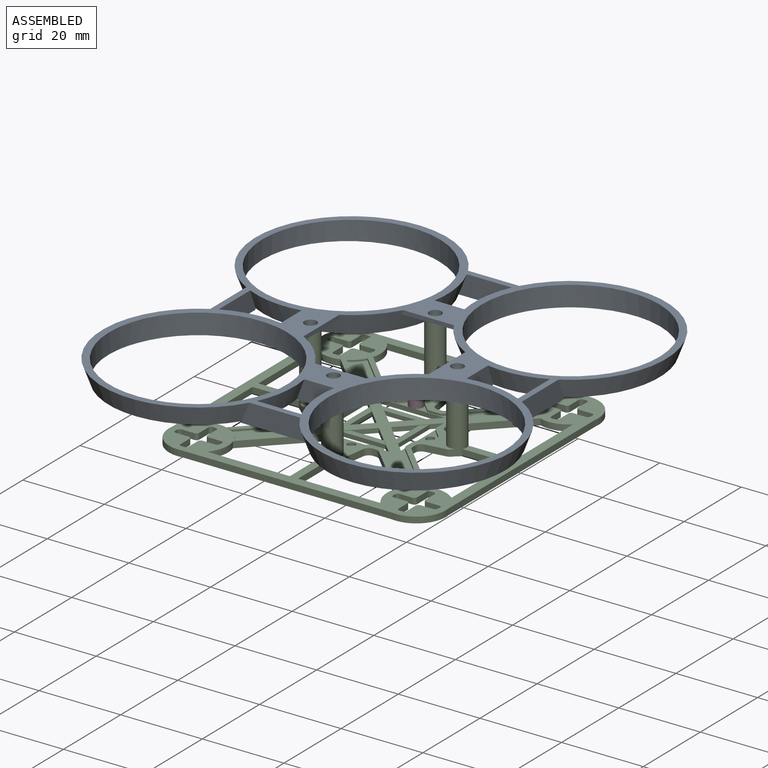
[diagram: assembled view]
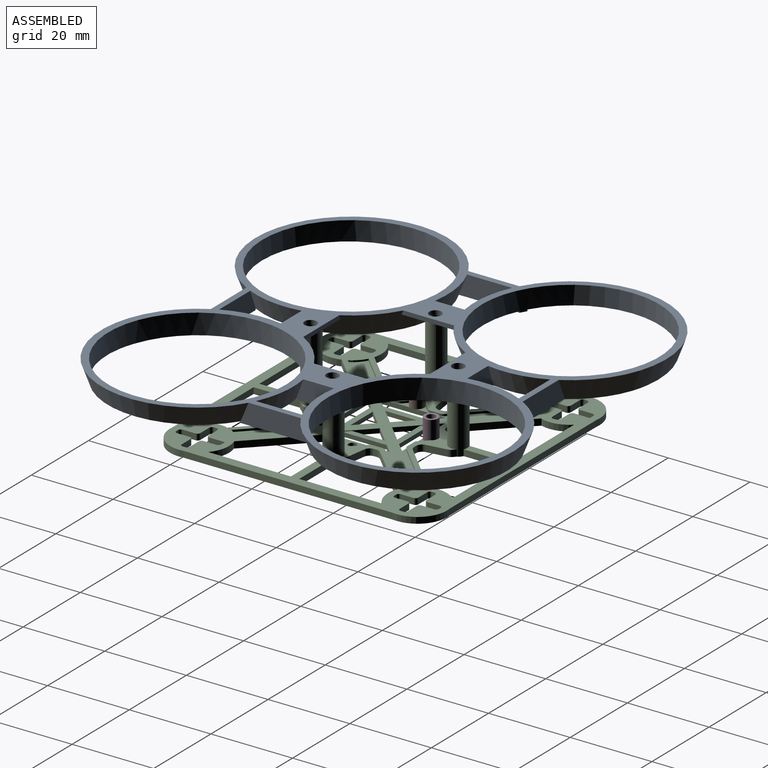
[diagram: assembled view, second angle]
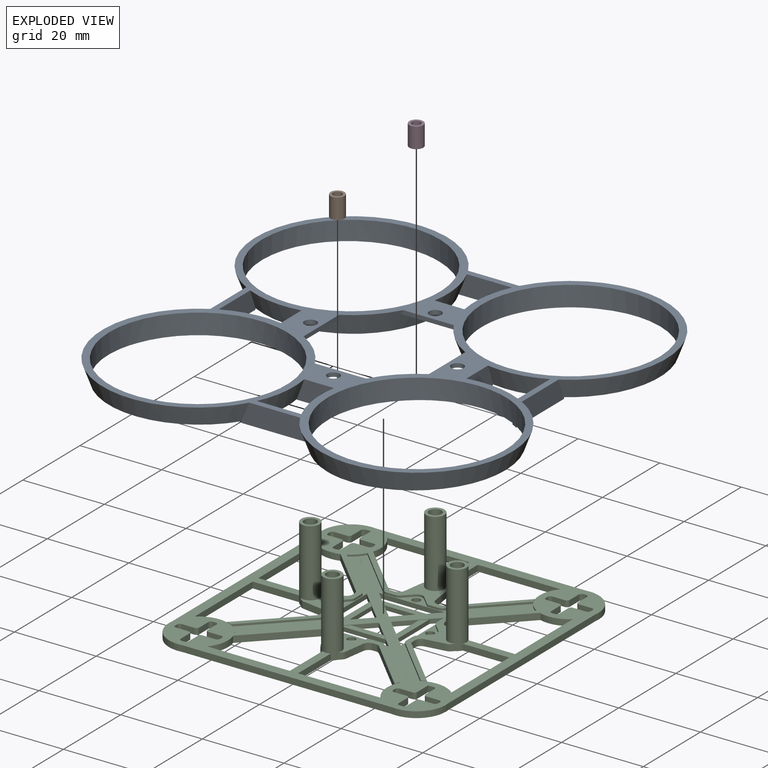
[diagram: exploded view]
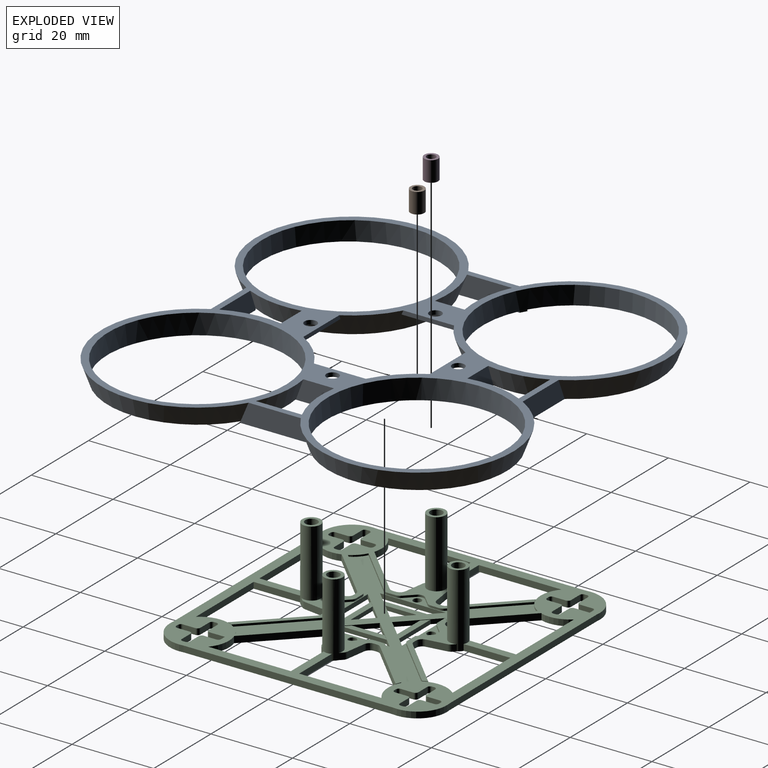
[diagram: exploded view, second angle]
ASSEMBLY  parts=4 mates=3
PART A: 54 faces, bbox 100.6x100.9x5.1 mm
  f0: cylinder r=21.74mm len=43.48mm, axis (0,0,-1), area 657.2mm2, adj f7,f11,f12,f13,f21,f22,f28,f36
  f1: cylinder r=21.74mm len=43.48mm, axis (0,0,-1), area 657.2mm2, adj f5,f6,f7,f8,f9,f17,f25,f26
  f2: cylinder r=21.74mm len=43.48mm, axis (0,0,-1), area 657.2mm2, adj f8,f9,f10,f17,f18,f24,f25,f27
  f3: cylinder r=21.74mm len=43.48mm, axis (0,0,-1), area 657.2mm2, adj f4,f10,f19,f20,f30,f31,f35,f36
  f4: cone r=23.5mm half-angle=20deg, axis (0,0,-1), area 121.3mm2, adj f3,f36,f37,f45,f46,f47,f49,f50
  f5: cone r=23.5mm half-angle=20deg, axis (0,0,-1), area 416mm2, adj f1,f7,f17,f23,f37
  f6: cone r=23.5mm half-angle=20deg, axis (0,0,-1), area 121.3mm2, adj f1,f7,f37,f38,f40,f41,f43,f51
  f7: plane 38.68x36.77mm, normal (0,0,1), area 28.4mm2, adj f0,f1,f5,f6,f14,f15,f16,f22
  f8: plane 16.71x1.51mm, normal (0,0,1), area 23.9mm2, adj f1,f2,f17,f25
  f9: plane 11.13x0.1mm, normal (0,0,1), area 1.1mm2, adj f1,f2,f34,f53
  f10: plane 36.77x27.56mm, normal (0,0,1), area 26.3mm2, adj f2,f3,f18,f19,f27,f29,f30,f35
  f11: plane 10.91x5.01mm, normal (1,0,0), area 45.5mm2, adj f0,f12,f32,f36,f37
  f12: cone r=23.5mm half-angle=20deg, axis (0,0,-1), area 72.2mm2, adj f0,f11,f13,f37
  f13: plane 14.95x5.04mm, normal (-1,0,0), area 65.1mm2, adj f0,f12,f32,f36,f37
  f14: plane 10.97x5.01mm, normal (0,1,0), area 45.5mm2, adj f7,f15,f33,f37
  f15: cone r=23.5mm half-angle=20deg, axis (0,0,-1), area 76.1mm2, adj f7,f14,f16,f37
  f16: plane 15.09x5.04mm, normal (0,-1,0), area 65.1mm2, adj f7,f15,f33,f37
  f17: plane 16.75x5.04mm, normal (-1,0,0), area 74.4mm2, adj f1,f2,f5,f8,f18,f37
  f18: cone r=23.5mm half-angle=20deg, axis (0,0,-1), area 417.6mm2, adj f2,f10,f17,f19,f37
  f19: plane 16.5x5.05mm, normal (0,-1,0), area 72.5mm2, adj f3,f10,f18,f20,f37
  f20: cone r=23.5mm half-angle=20deg, axis (0,0,-1), area 416mm2, adj f3,f19,f21,f36,f37
  f21: plane 16.66x5.05mm, normal (1,0,0), area 73.2mm2, adj f0,f20,f22,f36,f37
  f22: cone r=23.5mm half-angle=20deg, axis (0,0,-1), area 416mm2, adj f0,f7,f21,f23,f37
  f23: plane 16.82x5.05mm, normal (0,1,0), area 73.2mm2, adj f5,f7,f22,f37
  f24: cone r=23.5mm half-angle=20deg, axis (0,0,-1), area 72.2mm2, adj f2,f25,f34,f37
  f25: plane 15.06x5.03mm, normal (1,0,0), area 66.3mm2, adj f1,f2,f8,f24,f26,f37
  f26: cone r=23.5mm half-angle=20deg, axis (0,0,-1), area 72.2mm2, adj f1,f25,f34,f37
  f27: cone r=23.5mm half-angle=20deg, axis (0,0,-1), area 119.8mm2, adj f2,f10,f37,f38,f40,f45,f46,f52
  f28: cone r=23.5mm half-angle=20deg, axis (0,0,-1), area 121.3mm2, adj f0,f7,f37,f41,f43,f47,f49,f50
  f29: cone r=23.5mm half-angle=20deg, axis (0,0,-1), area 75.9mm2, adj f10,f30,f35,f37
  f30: plane 10.96x5.01mm, normal (0,-1,0), area 45.8mm2, adj f3,f10,f29,f31,f37
  f31: cone r=23.5mm half-angle=20deg, axis (0,0,-1), area 72.2mm2, adj f3,f30,f35,f37
  f32: cone r=23.5mm half-angle=20deg, axis (0,0,-1), area 76.1mm2, adj f11,f13,f36,f37
  f33: cone r=23.5mm half-angle=20deg, axis (0,0,-1), area 76.1mm2, adj f7,f14,f16,f37
  f34: plane 11.11x5.01mm, normal (-1,0,0), area 46.8mm2, adj f1,f2,f9,f24,f26,f37
  f35: plane 14.82x5.04mm, normal (0,1,0), area 64.5mm2, adj f3,f10,f29,f31,f37
  f36: plane 36.77x27.56mm, normal (0,0,1), area 26.5mm2, adj f0,f3,f4,f11,f13,f20,f21,f32
  f37: plane 100.84x100.59mm, normal (0,0,-1), area 1324.1mm2, adj f0,f1,f2,f3,f4,f5,f6,f11
  f38: plane 13.52x1mm, normal (1,0,0), area 13.1mm2, adj f6,f27,f37,f40
  f39: cylinder r=1.5mm len=3mm, axis (0,0,-1), area 9.4mm2, adj f37,f40
  f40: plane 13.52x5.75mm, normal (0,0,1), area 55.8mm2, adj f6,f27,f38,f39,f53
  f41: plane 13.26x1mm, normal (0,-1,0), area 12.8mm2, adj f6,f28,f37,f43
  f42: cylinder r=1.5mm len=3mm, axis (0,0,-1), area 9.4mm2, adj f37,f43
  f43: plane 13.26x5.75mm, normal (0,0,1), area 54.3mm2, adj f6,f28,f41,f42,f51
  f44: cylinder r=1.5mm len=3mm, axis (0,0,-1), area 9.4mm2, adj f37,f46
  f45: plane 13.41x1mm, normal (0,1,0), area 13mm2, adj f4,f27,f37,f46
  f46: plane 13.41x5.75mm, normal (0,0,1), area 54.9mm2, adj f4,f27,f44,f45,f52
  f47: plane 13.26x1mm, normal (-1,0,0), area 12.8mm2, adj f4,f28,f37,f49
  f48: cylinder r=1.5mm len=3mm, axis (0,0,-1), area 9.4mm2, adj f37,f49
  f49: plane 13.26x5.75mm, normal (0,0,1), area 54.3mm2, adj f4,f28,f47,f48,f50
  f50: plane 11.01x4.06mm, normal (-0.93,0,0.36), area 42.1mm2, adj f0,f4,f28,f36,f49
  f51: plane 11.05x4.06mm, normal (0,-0.93,0.36), area 42.1mm2, adj f6,f7,f28,f43
  f52: plane 11.06x4.06mm, normal (0,0.93,0.36), area 42.4mm2, adj f3,f4,f10,f27,f46
  f53: plane 11.21x4.05mm, normal (0.93,0,0.36), area 43.2mm2, adj f1,f2,f6,f9,f27,f40
PART B: 4 faces, bbox 3.4x3.4x5 mm
  f0: cylinder r=1.1mm len=5mm, axis (0,0,-1), area 34.6mm2, adj f2,f3
  f1: cylinder r=1.7mm len=5mm, axis (0,0,-1), area 53.4mm2, adj f2,f3
  f2: plane 3.4x3.4mm, normal (0,0,1), area 5.3mm2, adj f0,f1
  f3: plane 3.4x3.4mm, normal (0,0,-1), area 5.3mm2, adj f0,f1
PART C: 284 faces, bbox 67.8x67.8x18 mm
  f0: cylinder r=7.23mm len=6.95mm, axis (0,0,-1), area 11.1mm2, adj f41,f76,f94,f280
  f1: cylinder r=7.23mm len=8.27mm, axis (0,0,-1), area 20.2mm2, adj f76,f94,f276,f281
  f2: cylinder r=7.23mm len=8.27mm, axis (0,0,-1), area 20.2mm2, adj f76,f94,f264,f276
  f3: cylinder r=7.23mm len=6.95mm, axis (0,0,-1), area 11.1mm2, adj f51,f76,f94,f275
  f4: cylinder r=2.25mm len=18mm, axis (0,0,-1), area 236.6mm2, adj f31,f35,f36,f76,f77,f94,f269,f273
  f5: cylinder r=7.23mm len=8.27mm, axis (0,0,-1), area 20.2mm2, adj f76,f94,f264,f271
  f6: cylinder r=7.23mm len=8.27mm, axis (0,0,-1), area 20.2mm2, adj f76,f94,f271,f281
  f7: cylinder r=7.23mm len=6.95mm, axis (0,0,-1), area 11.1mm2, adj f69,f76,f94,f265
  f8: cylinder r=7.23mm len=6.95mm, axis (0,0,-1), area 11.1mm2, adj f61,f76,f94,f268
  f9: plane 8.05x8.05mm, normal (-0.71,0.71,0), area 10.4mm2, adj f10,f26,f76,f162,f252,f253,f254
  f10: plane 8.05x8.05mm, normal (0.71,0.71,0), area 10.4mm2, adj f9,f26,f76,f162,f252,f253,f254
  f11: plane 8.05x8.05mm, normal (0.71,0.71,0), area 10.4mm2, adj f12,f21,f76,f162,f261,f262,f263
  f12: plane 8.05x8.05mm, normal (0.71,-0.71,0), area 10.4mm2, adj f11,f21,f76,f162,f261,f262,f263
  f13: plane 8.05x8.05mm, normal (-0.71,-0.71,0), area 10.4mm2, adj f14,f25,f76,f162,f258,f259,f260
  f14: plane 16.1x1.1mm, normal (0,1,0), area 17.7mm2, adj f13,f25,f76,f162
  f15: plane 8.05x8.05mm, normal (-0.71,0.71,0), area 10.4mm2, adj f16,f27,f76,f162,f255,f256,f257
  f16: plane 16.1x1.1mm, normal (1,0,0), area 17.7mm2, adj f15,f27,f76,f162
  f17: cylinder r=7.23mm len=1.16mm, axis (0,0,-1), area 0.1mm2, adj f41,f75,f94,f155
  f18: cylinder r=7.23mm len=1.19mm, axis (0,0,-1), area 0.1mm2, adj f29,f51,f94,f134
  f19: cylinder r=7.23mm len=1.16mm, axis (0,0,-1), area 0.1mm2, adj f30,f61,f94,f141
  f20: cylinder r=1mm len=2mm, axis (0,0,-1), area 6.9mm2, adj f76,f162
  f21: plane 16.1x1.1mm, normal (-1,0,0), area 17.7mm2, adj f11,f12,f76,f162
  f22: cylinder r=1mm len=2mm, axis (0,0,-1), area 6.9mm2, adj f76,f162
  f23: cylinder r=1mm len=2mm, axis (0,0,-1), area 6.9mm2, adj f76,f162
  f24: cylinder r=1mm len=2mm, axis (0,0,-1), area 6.9mm2, adj f76,f162
  f25: plane 8.05x8.05mm, normal (0.71,-0.71,0), area 10.4mm2, adj f13,f14,f76,f162,f258,f259,f260
  f26: plane 16.1x1.1mm, normal (0,-1,0), area 17.7mm2, adj f9,f10,f76,f162
  f27: plane 8.05x8.05mm, normal (-0.71,-0.71,0), area 10.4mm2, adj f15,f16,f76,f162,f255,f256,f257
  f28: cylinder r=7.23mm len=1.19mm, axis (0,0,-1), area 0.1mm2, adj f30,f69,f94,f146
  f29: plane 40.62x14.52mm, normal (0,0,1), area 90.9mm2, adj f18,f51,f52,f53,f54,f55,f56,f57
  f30: plane 40.61x14.49mm, normal (0,0,1), area 89.8mm2, adj f19,f28,f61,f62,f63,f64,f65,f66
  f31: plane 40.61x14.52mm, normal (0,0,1), area 91mm2, adj f4,f32,f33,f34,f35,f36,f37,f38
  f32: plane 12.73x12.73mm, normal (-0.71,-0.71,0), area 28.8mm2, adj f31,f73,f76,f93,f183
  f33: plane 1.6x0.71mm, normal (-1,0,0), area 1.1mm2, adj f31,f76,f183,f184
  f34: plane 4.91x1.6mm, normal (-0.15,0.99,0), area 7.9mm2, adj f31,f76,f184,f188
  f35: plane 1.6x0.64mm, normal (-0.71,0.7,0), area 1.4mm2, adj f4,f31,f76,f188
  f36: plane 1.6x0.64mm, normal (-0.71,-0.7,0), area 1.4mm2, adj f4,f31,f76,f189
  f37: plane 4.91x1.6mm, normal (-0.15,-0.99,0), area 7.9mm2, adj f31,f76,f189,f190
  f38: plane 1.6x0.71mm, normal (-1,0,0), area 1.1mm2, adj f31,f76,f190,f191
  f39: plane 12.73x12.73mm, normal (-0.71,0.71,0), area 28.8mm2, adj f31,f40,f76,f108,f191
  f40: cylinder r=7.23mm len=1.23mm, axis (0,0,-1), area 0.1mm2, adj f31,f39,f94,f153
  f41: plane 12.7x12.7mm, normal (0.71,-0.71,0), area 28.7mm2, adj f0,f17,f75,f76,f192
  f42: plane 1.6x0.76mm, normal (0,-1,0), area 1.2mm2, adj f75,f76,f192,f193
  f43: plane 4.91x1.6mm, normal (-0.99,-0.15,0), area 7.9mm2, adj f75,f76,f193,f194
  f44: plane 1.6x0.64mm, normal (-0.7,-0.71,0), area 1.4mm2, adj f45,f75,f76,f194
  f45: cylinder r=2.25mm len=18mm, axis (0,0,-1), area 236.6mm2, adj f44,f46,f75,f76,f80,f94,f279,f283
  f46: plane 1.6x0.64mm, normal (0.7,-0.71,0), area 1.4mm2, adj f45,f75,f76,f195
  f47: plane 4.91x1.6mm, normal (0.99,-0.15,0), area 7.9mm2, adj f75,f76,f195,f196
  f48: plane 1.6x0.71mm, normal (0,-1,0), area 1.1mm2, adj f75,f76,f196,f197
  f49: plane 12.73x12.73mm, normal (-0.71,-0.71,0), area 28.8mm2, adj f50,f75,f76,f121,f197
  f50: cylinder r=7.23mm len=1.2mm, axis (0,0,-1), area 0.1mm2, adj f49,f75,f94,f160
  f51: plane 12.7x12.7mm, normal (0.71,0.71,0), area 28.7mm2, adj f3,f18,f29,f76,f198
  f52: plane 1.6x0.76mm, normal (1,0,0), area 1.2mm2, adj f29,f76,f198,f204
  f53: plane 4.91x1.6mm, normal (0.15,-0.99,0), area 7.9mm2, adj f29,f76,f204,f205
  f54: plane 1.6x0.64mm, normal (0.71,-0.7,0), area 1.4mm2, adj f29,f55,f76,f205
  f55: cylinder r=2.25mm len=18mm, axis (0,0,-1), area 236.6mm2, adj f29,f54,f56,f76,f79,f94,f274,f278
  f56: plane 1.6x0.64mm, normal (0.71,0.7,0), area 1.4mm2, adj f29,f55,f76,f203
  f57: plane 4.91x1.6mm, normal (0.15,0.99,0), area 7.9mm2, adj f29,f76,f202,f203
  f58: plane 1.6x0.71mm, normal (1,0,0), area 1.1mm2, adj f29,f76,f187,f202
  f59: plane 12.73x12.73mm, normal (0.71,-0.71,0), area 28.8mm2, adj f29,f60,f76,f95,f187
  f60: cylinder r=7.23mm len=1.23mm, axis (0,0,-1), area 0.1mm2, adj f29,f59,f94,f139
  f61: plane 12.7x12.7mm, normal (-0.71,0.71,0), area 28.7mm2, adj f8,f19,f30,f76,f186
  f62: plane 1.6x0.76mm, normal (0,1,0), area 1.2mm2, adj f30,f76,f186,f200
  f63: plane 4.91x1.6mm, normal (0.99,0.15,0), area 7.9mm2, adj f30,f76,f200,f201
  f64: plane 1.6x0.64mm, normal (0.7,0.71,0), area 1.4mm2, adj f30,f65,f76,f201
  f65: cylinder r=2.25mm len=18mm, axis (0,0,-1), area 236.6mm2, adj f30,f64,f66,f76,f78,f94,f266,f267
  f66: plane 1.6x0.64mm, normal (-0.7,0.71,0), area 1.4mm2, adj f30,f65,f76,f199
  f67: plane 4.91x1.6mm, normal (-0.99,0.15,0), area 7.9mm2, adj f30,f76,f185,f199
  f68: plane 1.6x0.76mm, normal (0,1,0), area 1.2mm2, adj f30,f76,f182,f185
  f69: plane 12.7x12.7mm, normal (0.71,0.71,0), area 28.7mm2, adj f7,f28,f30,f76,f182
  f70: cylinder r=1.5mm len=18mm, axis (0,0,-1), area 169.6mm2, adj f76,f78
  f71: cylinder r=1.5mm len=18mm, axis (0,0,-1), area 169.6mm2, adj f76,f80
  f72: cylinder r=1.5mm len=18mm, axis (0,0,-1), area 169.6mm2, adj f76,f79
  f73: cylinder r=7.23mm len=1.2mm, axis (0,0,-1), area 0.1mm2, adj f31,f32,f94,f148
  f74: cylinder r=1.5mm len=18mm, axis (0,0,-1), area 169.6mm2, adj f76,f77
  f75: plane 40.59x14.52mm, normal (0,0,1), area 89.6mm2, adj f17,f41,f42,f43,f44,f45,f46,f47
  f76: plane 67.84x67.84mm, normal (0,0,-1), area 1962.7mm2, adj f0,f1,f2,f3,f4,f5,f6,f7
  f77: plane 4.5x4.5mm, normal (0,0,1), area 8.8mm2, adj f4,f74
  f78: plane 4.5x4.5mm, normal (0,0,1), area 8.8mm2, adj f65,f70
  f79: plane 4.5x4.5mm, normal (0,0,1), area 8.8mm2, adj f55,f72
  f80: plane 4.5x4.5mm, normal (0,0,1), area 8.8mm2, adj f45,f71
  f81: plane 3.1x1.5mm, normal (0,1,0), area 4.6mm2, adj f76,f94,f206,f216
  f82: plane 3.1x1.5mm, normal (-1,0,0), area 4.6mm2, adj f76,f94,f215,f216
  f83: plane 1.5x0.6mm, normal (0,1,0), area 0.9mm2, adj f76,f94,f214,f215
  f84: plane 3.1x1.5mm, normal (1,0,0), area 4.6mm2, adj f76,f94,f213,f214
  f85: plane 3.1x1.5mm, normal (0,1,0), area 4.7mm2, adj f76,f94,f212,f213
  f86: plane 1.5x0.6mm, normal (1,0,0), area 0.9mm2, adj f76,f94,f211,f212
  f87: plane 3.1x1.5mm, normal (0,-1,0), area 4.7mm2, adj f76,f94,f210,f211
  f88: plane 3.1x1.5mm, normal (1,0,0), area 4.7mm2, adj f76,f94,f209,f210
  f89: plane 1.5x1.3mm, normal (0,-1,0), area 2mm2, adj f76,f90,f94,f209
  f90: plane 3.8x1.5mm, normal (-1,0,0), area 5.7mm2, adj f76,f89,f94,f208
  f91: plane 3.1x1.5mm, normal (0,-1,0), area 4.6mm2, adj f76,f94,f207,f208
  f92: plane 1.5x0.6mm, normal (-1,0,0), area 0.9mm2, adj f76,f94,f206,f207
  f93: cylinder r=7.23mm len=6.92mm, axis (0,0,-1), area 11.1mm2, adj f32,f76,f94,f270
  f94: plane 67.84x67.84mm, normal (0,0,1), area 1028.8mm2, adj f0,f1,f2,f3,f4,f5,f6,f7
  f95: cylinder r=7.23mm len=6.92mm, axis (0,0,-1), area 11.1mm2, adj f59,f76,f94,f277
  f96: plane 3.1x1.5mm, normal (1,0,0), area 4.6mm2, adj f76,f94,f217,f228
  f97: plane 3.1x1.5mm, normal (0,1,0), area 4.6mm2, adj f76,f94,f227,f228
  f98: plane 1.5x0.6mm, normal (1,0,0), area 0.9mm2, adj f76,f94,f226,f227
  f99: plane 3.1x1.5mm, normal (0,-1,0), area 4.6mm2, adj f76,f94,f225,f226
  f100: plane 3.1x1.5mm, normal (1,0,0), area 4.7mm2, adj f76,f94,f224,f225
  f101: plane 1.5x0.6mm, normal (0,-1,0), area 0.9mm2, adj f76,f94,f223,f224
  f102: plane 3.1x1.5mm, normal (-1,0,0), area 4.7mm2, adj f76,f94,f222,f223
  f103: plane 3.1x1.5mm, normal (0,-1,0), area 4.7mm2, adj f76,f94,f221,f222
  f104: plane 1.5x0.6mm, normal (-1,0,0), area 0.9mm2, adj f76,f94,f220,f221
  f105: plane 3.1x1.5mm, normal (0,1,0), area 4.7mm2, adj f76,f94,f219,f220
  f106: plane 3.1x1.5mm, normal (-1,0,0), area 4.6mm2, adj f76,f94,f218,f219
  f107: plane 1.5x0.6mm, normal (0,1,0), area 0.9mm2, adj f76,f94,f217,f218
  f108: cylinder r=7.23mm len=6.92mm, axis (0,0,-1), area 11.1mm2, adj f39,f76,f94,f272
  f109: plane 3.1x1.5mm, normal (0,1,0), area 4.7mm2, adj f76,f94,f229,f240
  f110: plane 1.5x0.6mm, normal (1,0,0), area 0.9mm2, adj f76,f94,f229,f230
  f111: plane 3.1x1.5mm, normal (0,-1,0), area 4.7mm2, adj f76,f94,f230,f231
  f112: plane 3.1x1.5mm, normal (1,0,0), area 4.6mm2, adj f76,f94,f231,f232
  f113: plane 1.5x0.6mm, normal (0,-1,0), area 0.9mm2, adj f76,f94,f232,f233
  f114: plane 3.1x1.5mm, normal (-1,0,0), area 4.6mm2, adj f76,f94,f233,f234
  f115: plane 3.1x1.5mm, normal (0,-1,0), area 4.6mm2, adj f76,f94,f234,f235
  f116: plane 1.5x0.6mm, normal (-1,0,0), area 0.9mm2, adj f76,f94,f235,f236
  f117: plane 3.1x1.5mm, normal (0,1,0), area 4.6mm2, adj f76,f94,f236,f237
  f118: plane 3.1x1.5mm, normal (-1,0,0), area 4.7mm2, adj f76,f94,f237,f238
  f119: plane 1.5x0.6mm, normal (0,1,0), area 0.9mm2, adj f76,f94,f238,f239
  f120: plane 3.1x1.5mm, normal (1,0,0), area 4.7mm2, adj f76,f94,f239,f240
  f121: cylinder r=7.23mm len=6.92mm, axis (0,0,-1), area 11.1mm2, adj f49,f76,f94,f282
  f122: plane 3.1x1.5mm, normal (-1,0,0), area 4.7mm2, adj f76,f94,f241,f251
  f123: plane 1.5x0.6mm, normal (0,1,0), area 0.9mm2, adj f76,f94,f250,f251
  f124: plane 3.1x1.5mm, normal (1,0,0), area 4.7mm2, adj f76,f94,f249,f250
  f125: plane 3.1x1.5mm, normal (0,1,0), area 4.6mm2, adj f76,f94,f248,f249
  f126: plane 1.5x0.6mm, normal (1,0,0), area 0.9mm2, adj f76,f94,f247,f248
  f127: plane 3.1x1.5mm, normal (0,-1,0), area 4.6mm2, adj f76,f94,f246,f247
  f128: plane 3.8x1.5mm, normal (1,0,0), area 5.7mm2, adj f76,f94,f129,f246
  f129: plane 1.5x1.3mm, normal (0,-1,0), area 2mm2, adj f76,f94,f128,f245
  f130: plane 3.1x1.5mm, normal (-1,0,0), area 4.6mm2, adj f76,f94,f244,f245
  f131: plane 3.1x1.5mm, normal (0,-1,0), area 4.7mm2, adj f76,f94,f243,f244
  f132: plane 1.5x0.6mm, normal (-1,0,0), area 0.9mm2, adj f76,f94,f242,f243
  f133: plane 3.1x1.5mm, normal (0,1,0), area 4.7mm2, adj f76,f94,f241,f242
  f134: plane 12.86x12.86mm, normal (-0.71,-0.71,0), area 9.1mm2, adj f18,f29,f161,f162,f164
  f135: plane 2.11x0.5mm, normal (-1,0,0), area 1.1mm2, adj f29,f162,f164,f177
  f136: plane 2.16x2.16mm, normal (-0.71,0.71,0), area 1.5mm2, adj f29,f162,f177,f180
  f137: plane 2.16x2.16mm, normal (-0.71,-0.71,0), area 1.5mm2, adj f29,f162,f166,f180
  f138: plane 2.13x0.5mm, normal (-1,0,0), area 1.1mm2, adj f29,f162,f166,f167
  f139: plane 12.86x12.86mm, normal (-0.71,0.71,0), area 9.1mm2, adj f29,f60,f140,f162,f167
  f140: cylinder r=7.23mm len=3.01mm, axis (0,0,1), area 1.7mm2, adj f94,f139,f141,f162
  f141: plane 12.89x12.89mm, normal (0.71,-0.71,0), area 9.1mm2, adj f19,f30,f140,f162,f165
  f142: plane 2.7x0.5mm, normal (0,-1,0), area 1.4mm2, adj f30,f143,f162,f165
  f143: plane 2.58x2.58mm, normal (-0.71,-0.71,0), area 1.8mm2, adj f30,f142,f162,f179
  f144: plane 2.14x2.14mm, normal (0.71,-0.71,0), area 1.5mm2, adj f30,f162,f178,f179
  f145: plane 2.14x0.5mm, normal (0,-1,0), area 1.1mm2, adj f30,f162,f171,f178
  f146: plane 12.86x12.86mm, normal (-0.71,-0.71,0), area 9.1mm2, adj f28,f30,f147,f162,f171
  f147: cylinder r=7.23mm len=3.01mm, axis (0,0,1), area 1.7mm2, adj f94,f146,f148,f162
  f148: plane 12.89x12.89mm, normal (0.71,0.71,0), area 9.1mm2, adj f31,f73,f147,f162,f170
  f149: plane 2.09x0.5mm, normal (1,0,0), area 1mm2, adj f31,f162,f170,f173
  f150: plane 2.15x2.15mm, normal (0.71,-0.71,0), area 1.5mm2, adj f31,f162,f173,f174
  f151: plane 2.15x2.15mm, normal (0.71,0.71,0), area 1.5mm2, adj f31,f162,f172,f174
  f152: plane 2.12x0.5mm, normal (1,0,0), area 1.1mm2, adj f31,f162,f169,f172
  f153: plane 12.86x12.86mm, normal (0.71,-0.71,0), area 9.1mm2, adj f31,f40,f154,f162,f169
  f154: cylinder r=7.23mm len=3.01mm, axis (0,0,1), area 1.7mm2, adj f94,f153,f155,f162
  f155: plane 12.89x12.89mm, normal (-0.71,0.71,0), area 9.1mm2, adj f17,f75,f154,f162,f168
  f156: plane 2.07x0.5mm, normal (0,1,0), area 1mm2, adj f75,f162,f168,f175
  f157: plane 2.16x2.16mm, normal (0.71,0.71,0), area 1.5mm2, adj f75,f162,f175,f181
  f158: plane 2.16x2.16mm, normal (-0.71,0.71,0), area 1.5mm2, adj f75,f162,f176,f181
  f159: plane 2.06x0.5mm, normal (0,1,0), area 1mm2, adj f75,f162,f163,f176
  f160: plane 12.89x12.89mm, normal (0.71,0.71,0), area 9.1mm2, adj f50,f75,f161,f162,f163
  f161: cylinder r=7.23mm len=3.01mm, axis (0,0,1), area 1.7mm2, adj f94,f134,f160,f162
  f162: plane 46.65x46.62mm, normal (0,0,1), area 478.8mm2, adj f9,f10,f11,f12,f13,f14,f15,f16
  f163: cylinder r=1.5mm len=1.06mm, axis (0,0,1), area 0.6mm2, adj f75,f159,f160,f162
  f164: cylinder r=1.5mm len=1.06mm, axis (0,0,-1), area 0.6mm2, adj f29,f134,f135,f162
  f165: cylinder r=1.5mm len=1.06mm, axis (0,0,1), area 0.6mm2, adj f30,f141,f142,f162
  f166: cylinder r=1.5mm len=1.06mm, axis (0,0,-1), area 0.6mm2, adj f29,f137,f138,f162
  f167: cylinder r=1.5mm len=1.06mm, axis (0,0,1), area 0.6mm2, adj f29,f138,f139,f162
  f168: cylinder r=1.5mm len=1.06mm, axis (0,0,-1), area 0.6mm2, adj f75,f155,f156,f162
  f169: cylinder r=1.5mm len=1.06mm, axis (0,0,-1), area 0.6mm2, adj f31,f152,f153,f162
  f170: cylinder r=1.5mm len=1.06mm, axis (0,0,-1), area 0.6mm2, adj f31,f148,f149,f162
  f171: cylinder r=1.5mm len=1.06mm, axis (0,0,1), area 0.6mm2, adj f30,f145,f146,f162
  f172: cylinder r=1.5mm len=1.06mm, axis (0,0,1), area 0.6mm2, adj f31,f151,f152,f162
  f173: cylinder r=1.5mm len=1.06mm, axis (0,0,1), area 0.6mm2, adj f31,f149,f150,f162
  f174: cylinder r=1.5mm len=2.12mm, axis (0,0,-1), area 1.2mm2, adj f31,f150,f151,f162
  f175: cylinder r=1.5mm len=1.06mm, axis (0,0,1), area 0.6mm2, adj f75,f156,f157,f162
  f176: cylinder r=1.5mm len=1.06mm, axis (0,0,1), area 0.6mm2, adj f75,f158,f159,f162
  f177: cylinder r=1.5mm len=1.06mm, axis (0,0,-1), area 0.6mm2, adj f29,f135,f136,f162
  f178: cylinder r=1.5mm len=1.06mm, axis (0,0,-1), area 0.6mm2, adj f30,f144,f145,f162
  f179: cylinder r=1.5mm len=2.12mm, axis (0,0,-1), area 1.2mm2, adj f30,f143,f144,f162
  f180: cylinder r=1.5mm len=2.12mm, axis (0,0,-1), area 1.2mm2, adj f29,f136,f137,f162
  f181: cylinder r=1.5mm len=2.12mm, axis (0,0,-1), area 1.2mm2, adj f75,f157,f158,f162
  f182: cylinder r=1.5mm len=1.6mm, axis (0,0,1), area 1.9mm2, adj f30,f68,f69,f76
  f183: cylinder r=1.5mm len=1.6mm, axis (0,0,-1), area 1.9mm2, adj f31,f32,f33,f76
  f184: cylinder r=1.5mm len=1.6mm, axis (0,0,1), area 3.4mm2, adj f31,f33,f34,f76
  f185: cylinder r=1.5mm len=1.6mm, axis (0,0,1), area 3.4mm2, adj f30,f67,f68,f76
  f186: cylinder r=1.5mm len=1.6mm, axis (0,0,-1), area 1.9mm2, adj f30,f61,f62,f76
  f187: cylinder r=1.5mm len=1.6mm, axis (0,0,-1), area 1.9mm2, adj f29,f58,f59,f76
  f188: cylinder r=1.5mm len=1.6mm, axis (0,0,-1), area 1.6mm2, adj f31,f34,f35,f76
  f189: cylinder r=1.5mm len=1.6mm, axis (0,0,-1), area 1.6mm2, adj f31,f36,f37,f76
  f190: cylinder r=1.5mm len=1.6mm, axis (0,0,-1), area 3.4mm2, adj f31,f37,f38,f76
  f191: cylinder r=1.5mm len=1.6mm, axis (0,0,1), area 1.9mm2, adj f31,f38,f39,f76
  f192: cylinder r=1.5mm len=1.6mm, axis (0,0,1), area 1.9mm2, adj f41,f42,f75,f76
  f193: cylinder r=1.5mm len=1.6mm, axis (0,0,1), area 3.4mm2, adj f42,f43,f75,f76
  f194: cylinder r=1.5mm len=1.6mm, axis (0,0,-1), area 1.6mm2, adj f43,f44,f75,f76
  f195: cylinder r=1.5mm len=1.6mm, axis (0,0,-1), area 1.6mm2, adj f46,f47,f75,f76
  f196: cylinder r=1.5mm len=1.6mm, axis (0,0,-1), area 3.4mm2, adj f47,f48,f75,f76
  f197: cylinder r=1.5mm len=1.6mm, axis (0,0,1), area 1.9mm2, adj f48,f49,f75,f76
  f198: cylinder r=1.5mm len=1.6mm, axis (0,0,-1), area 1.9mm2, adj f29,f51,f52,f76
  f199: cylinder r=1.5mm len=1.6mm, axis (0,0,-1), area 1.6mm2, adj f30,f66,f67,f76
  f200: cylinder r=1.5mm len=1.6mm, axis (0,0,-1), area 3.4mm2, adj f30,f62,f63,f76
  f201: cylinder r=1.5mm len=1.6mm, axis (0,0,-1), area 1.6mm2, adj f30,f63,f64,f76
  f202: cylinder r=1.5mm len=1.6mm, axis (0,0,1), area 3.4mm2, adj f29,f57,f58,f76
  f203: cylinder r=1.5mm len=1.6mm, axis (0,0,-1), area 1.6mm2, adj f29,f56,f57,f76
  f204: cylinder r=1.5mm len=1.6mm, axis (0,0,-1), area 3.4mm2, adj f29,f52,f53,f76
  f205: cylinder r=1.5mm len=1.6mm, axis (0,0,-1), area 1.6mm2, adj f29,f53,f54,f76
  f206: cylinder r=0.7mm len=1.5mm, axis (0,0,-1), area 1.6mm2, adj f76,f81,f92,f94
  f207: cylinder r=0.7mm len=1.5mm, axis (0,0,1), area 1.6mm2, adj f76,f91,f92,f94
  f208: cylinder r=0.7mm len=1.5mm, axis (0,0,-1), area 1.6mm2, adj f76,f90,f91,f94
  f209: cylinder r=0.7mm len=1.5mm, axis (0,0,-1), area 1.6mm2, adj f76,f88,f89,f94
  f210: cylinder r=0.7mm len=1.5mm, axis (0,0,1), area 1.6mm2, adj f76,f87,f88,f94
  f211: cylinder r=0.7mm len=1.5mm, axis (0,0,-1), area 1.6mm2, adj f76,f86,f87,f94
  f212: cylinder r=0.7mm len=1.5mm, axis (0,0,1), area 1.6mm2, adj f76,f85,f86,f94
  f213: cylinder r=0.7mm len=1.5mm, axis (0,0,-1), area 1.6mm2, adj f76,f84,f85,f94
  f214: cylinder r=0.7mm len=1.5mm, axis (0,0,1), area 1.6mm2, adj f76,f83,f84,f94
  f215: cylinder r=0.7mm len=1.5mm, axis (0,0,-1), area 1.6mm2, adj f76,f82,f83,f94
  f216: cylinder r=0.7mm len=1.5mm, axis (0,0,1), area 1.6mm2, adj f76,f81,f82,f94
  f217: cylinder r=0.7mm len=1.5mm, axis (0,0,-1), area 1.6mm2, adj f76,f94,f96,f107
  f218: cylinder r=0.7mm len=1.5mm, axis (0,0,1), area 1.6mm2, adj f76,f94,f106,f107
  f219: cylinder r=0.7mm len=1.5mm, axis (0,0,-1), area 1.6mm2, adj f76,f94,f105,f106
  f220: cylinder r=0.7mm len=1.5mm, axis (0,0,1), area 1.6mm2, adj f76,f94,f104,f105
  f221: cylinder r=0.7mm len=1.5mm, axis (0,0,-1), area 1.6mm2, adj f76,f94,f103,f104
  f222: cylinder r=0.7mm len=1.5mm, axis (0,0,1), area 1.6mm2, adj f76,f94,f102,f103
  f223: cylinder r=0.7mm len=1.5mm, axis (0,0,-1), area 1.6mm2, adj f76,f94,f101,f102
  f224: cylinder r=0.7mm len=1.5mm, axis (0,0,1), area 1.6mm2, adj f76,f94,f100,f101
  f225: cylinder r=0.7mm len=1.5mm, axis (0,0,-1), area 1.6mm2, adj f76,f94,f99,f100
  f226: cylinder r=0.7mm len=1.5mm, axis (0,0,1), area 1.6mm2, adj f76,f94,f98,f99
  f227: cylinder r=0.7mm len=1.5mm, axis (0,0,-1), area 1.6mm2, adj f76,f94,f97,f98
  f228: cylinder r=0.7mm len=1.5mm, axis (0,0,1), area 1.6mm2, adj f76,f94,f96,f97
  f229: cylinder r=0.7mm len=1.5mm, axis (0,0,-1), area 1.6mm2, adj f76,f94,f109,f110
  f230: cylinder r=0.7mm len=1.5mm, axis (0,0,1), area 1.6mm2, adj f76,f94,f110,f111
  f231: cylinder r=0.7mm len=1.5mm, axis (0,0,-1), area 1.6mm2, adj f76,f94,f111,f112
  f232: cylinder r=0.7mm len=1.5mm, axis (0,0,1), area 1.6mm2, adj f76,f94,f112,f113
  f233: cylinder r=0.7mm len=1.5mm, axis (0,0,-1), area 1.6mm2, adj f76,f94,f113,f114
  f234: cylinder r=0.7mm len=1.5mm, axis (0,0,1), area 1.6mm2, adj f76,f94,f114,f115
  f235: cylinder r=0.7mm len=1.5mm, axis (0,0,-1), area 1.6mm2, adj f76,f94,f115,f116
  f236: cylinder r=0.7mm len=1.5mm, axis (0,0,1), area 1.6mm2, adj f76,f94,f116,f117
  f237: cylinder r=0.7mm len=1.5mm, axis (0,0,-1), area 1.6mm2, adj f76,f94,f117,f118
  f238: cylinder r=0.7mm len=1.5mm, axis (0,0,1), area 1.6mm2, adj f76,f94,f118,f119
  f239: cylinder r=0.7mm len=1.5mm, axis (0,0,-1), area 1.6mm2, adj f76,f94,f119,f120
  f240: cylinder r=0.7mm len=1.5mm, axis (0,0,1), area 1.6mm2, adj f76,f94,f109,f120
  f241: cylinder r=0.7mm len=1.5mm, axis (0,0,1), area 1.6mm2, adj f76,f94,f122,f133
  f242: cylinder r=0.7mm len=1.5mm, axis (0,0,-1), area 1.6mm2, adj f76,f94,f132,f133
  f243: cylinder r=0.7mm len=1.5mm, axis (0,0,1), area 1.6mm2, adj f76,f94,f131,f132
  f244: cylinder r=0.7mm len=1.5mm, axis (0,0,-1), area 1.6mm2, adj f76,f94,f130,f131
  f245: cylinder r=0.7mm len=1.5mm, axis (0,0,1), area 1.6mm2, adj f76,f94,f129,f130
  f246: cylinder r=0.7mm len=1.5mm, axis (0,0,1), area 1.6mm2, adj f76,f94,f127,f128
  f247: cylinder r=0.7mm len=1.5mm, axis (0,0,-1), area 1.6mm2, adj f76,f94,f126,f127
  f248: cylinder r=0.7mm len=1.5mm, axis (0,0,1), area 1.6mm2, adj f76,f94,f125,f126
  f249: cylinder r=0.7mm len=1.5mm, axis (0,0,-1), area 1.6mm2, adj f76,f94,f124,f125
  f250: cylinder r=0.7mm len=1.5mm, axis (0,0,1), area 1.6mm2, adj f76,f94,f123,f124
  f251: cylinder r=0.7mm len=1.5mm, axis (0,0,-1), area 1.6mm2, adj f76,f94,f122,f123
  f252: plane 8.05x1mm, normal (0,-1,0), area 8mm2, adj f9,f10,f76,f254
  f253: plane 11.1x1mm, normal (0,1,0), area 11.1mm2, adj f9,f10,f76,f254
  f254: plane 11.1x1.52mm, normal (0,0,1), area 14.6mm2, adj f9,f10,f252,f253
  f255: plane 8.05x1mm, normal (1,0,0), area 8mm2, adj f15,f27,f76,f257
  f256: plane 11.1x1mm, normal (-1,0,0), area 11.1mm2, adj f15,f27,f76,f257
  f257: plane 11.1x1.52mm, normal (0,0,1), area 14.6mm2, adj f15,f27,f255,f256
  f258: plane 8.05x1mm, normal (0,1,0), area 8mm2, adj f13,f25,f76,f260
  f259: plane 11.1x1mm, normal (0,-1,0), area 11.1mm2, adj f13,f25,f76,f260
  f260: plane 11.1x1.52mm, normal (0,0,1), area 14.6mm2, adj f13,f25,f258,f259
  f261: plane 8.05x1mm, normal (-1,0,0), area 8mm2, adj f11,f12,f76,f263
  f262: plane 11.1x1mm, normal (1,0,0), area 11.1mm2, adj f11,f12,f76,f263
  f263: plane 11.1x1.52mm, normal (0,0,1), area 14.6mm2, adj f11,f12,f261,f262
  f264: plane 51.31x1.5mm, normal (0,1,0), area 77mm2, adj f2,f5,f76,f94
  f265: plane 20.23x1.5mm, normal (0,-1,0), area 30.3mm2, adj f7,f76,f94,f266
  f266: plane 11.43x1.5mm, normal (-1,0,0), area 17.1mm2, adj f65,f76,f94,f265
  f267: plane 11.43x1.5mm, normal (1,0,0), area 17.1mm2, adj f65,f76,f94,f268
  f268: plane 20.23x1.5mm, normal (0,-1,0), area 30.3mm2, adj f8,f76,f94,f267
  f269: plane 11.43x1.5mm, normal (0,1,0), area 17.1mm2, adj f4,f76,f94,f270
  f270: plane 20.23x1.5mm, normal (1,0,0), area 30.3mm2, adj f76,f93,f94,f269
  f271: plane 51.31x1.5mm, normal (-1,0,0), area 77mm2, adj f5,f6,f76,f94
  f272: plane 20.23x1.5mm, normal (1,0,0), area 30.3mm2, adj f76,f94,f108,f273
  f273: plane 11.43x1.5mm, normal (0,-1,0), area 17.1mm2, adj f4,f76,f94,f272
  f274: plane 11.43x1.5mm, normal (0,-1,0), area 17.1mm2, adj f55,f76,f94,f275
  f275: plane 20.23x1.5mm, normal (-1,0,0), area 30.3mm2, adj f3,f76,f94,f274
  f276: plane 51.31x1.5mm, normal (1,0,0), area 77mm2, adj f1,f2,f76,f94
  f277: plane 20.23x1.5mm, normal (-1,0,0), area 30.3mm2, adj f76,f94,f95,f278
  f278: plane 11.43x1.5mm, normal (0,1,0), area 17.1mm2, adj f55,f76,f94,f277
  f279: plane 11.43x1.5mm, normal (-1,0,0), area 17.1mm2, adj f45,f76,f94,f280
  f280: plane 20.23x1.5mm, normal (0,1,0), area 30.3mm2, adj f0,f76,f94,f279
  f281: plane 51.31x1.5mm, normal (0,-1,0), area 77mm2, adj f1,f6,f76,f94
  f282: plane 20.23x1.5mm, normal (0,1,0), area 30.3mm2, adj f76,f94,f121,f283
  f283: plane 11.43x1.5mm, normal (1,0,0), area 17.1mm2, adj f45,f76,f94,f282
PART D: same geometry as B
PLACE A rot(axis=(0,1,0),180deg) t=(1.49,1.44,22.49)mm
PLACE B t=(-9.99,1.57,4.59)mm
PLACE C t=(1.36,1.57,3.49)mm
PLACE D t=(1.36,12.92,4.59)mm
MATE fastened C.f70 <-> A.f42  axis (0,0,1) through (1.36,19.57,21.49)mm
MATE fastened D.f1 <-> C.f22  axis (0,0,-1) through (1.36,12.92,4.59)mm
MATE fastened C.f24 <-> B.f1  axis (0,0,1) through (-9.99,1.57,4.59)mm
